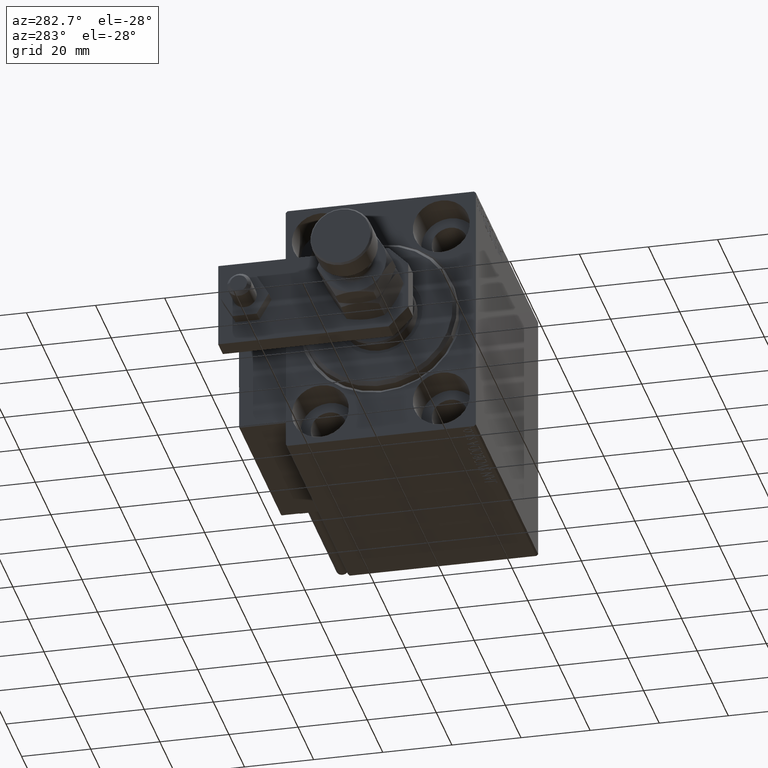
[diagram: clean part render]
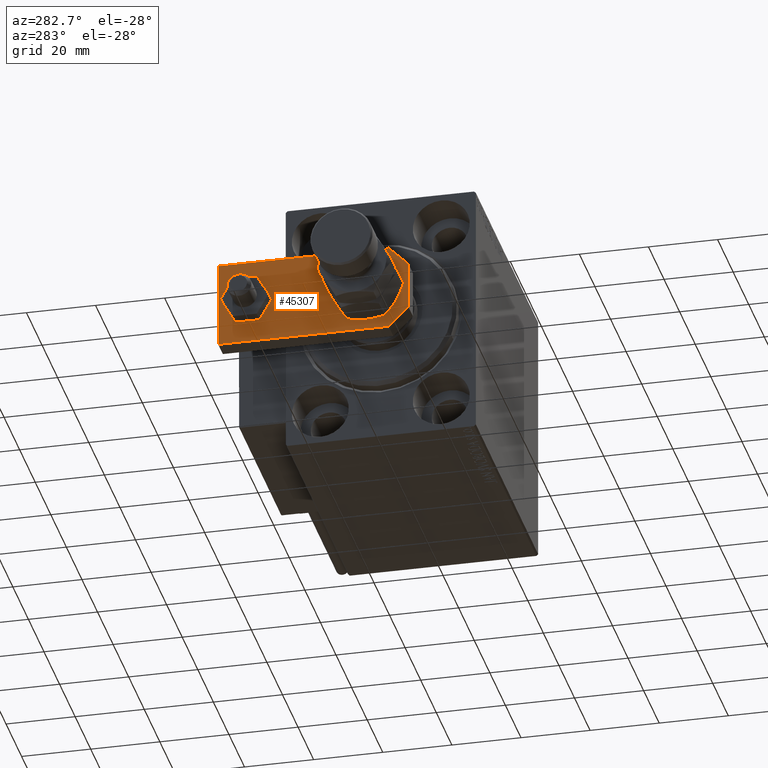
[diagram: same view with one face highlighted and labeled with its STEP entity id]
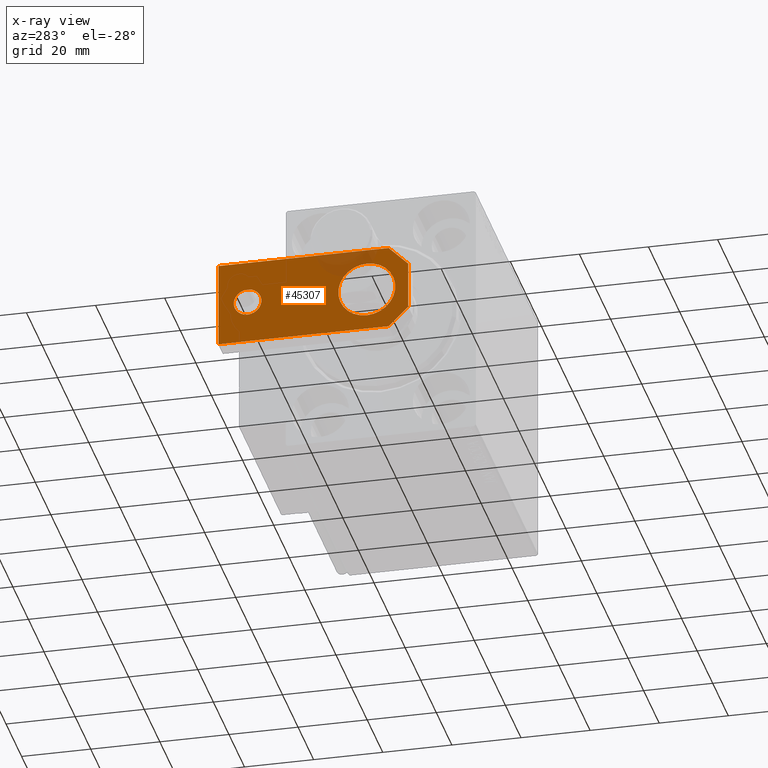
[diagram: x-ray of the same camera — body ghosted, the highlighted face saturated]
A machine part, auxiliary view. The second image highlights one B-rep face of the part: STEP entity #45307.
The next image is the same camera in x-ray: the body ghosted, the highlighted face saturated — about 8% of this face is hidden behind the body in this view.
In plain terms, the highlighted planar face has unit normal (-1, 0, 0).
Its self-contained STEP definition (entity closure, byte-faithful):
#3 = DIRECTION ( 'NONE',  ( -1.000000000000000000, 0.000000000000000000, 0.000000000000000000 ) ) ;
#121 = VERTEX_POINT ( 'NONE', #6047 ) ;
#836 = EDGE_LOOP ( 'NONE', ( #4872, #27222 ) ) ;
#1363 = ORIENTED_EDGE ( 'NONE', *, *, #37862, .T. ) ;
#1496 = VECTOR ( 'NONE', #22887, 1000.000000000000114 ) ;
#2271 = DIRECTION ( 'NONE',  ( 0.000000000000000000, 0.000000000000000000, 1.000000000000000000 ) ) ;
#2377 = EDGE_LOOP ( 'NONE', ( #4133, #8394 ) ) ;
#4133 = ORIENTED_EDGE ( 'NONE', *, *, #8149, .F. ) ;
#4872 = ORIENTED_EDGE ( 'NONE', *, *, #46225, .F. ) ;
#4991 = CARTESIAN_POINT ( 'NONE',  ( -4.000000000000000888, 46.50000000000000000, 6.000000000000000000 ) ) ;
#6047 = CARTESIAN_POINT ( 'NONE',  ( -12.49999999999999822, 55.00000000000000000, 6.000000000000000000 ) ) ;
#6073 = DIRECTION ( 'NONE',  ( 0.000000000000000000, 0.000000000000000000, 1.000000000000000000 ) ) ;
#7269 = CARTESIAN_POINT ( 'NONE',  ( -12.50000000000000355, 5.660000000000005471, 6.000000000000000000 ) ) ;
#8059 = VERTEX_POINT ( 'NONE', #15794 ) ;
#8149 = EDGE_CURVE ( 'NONE', #33242, #15772, #24075, .T. ) ;
#8394 = ORIENTED_EDGE ( 'NONE', *, *, #21030, .F. ) ;
#9320 = CARTESIAN_POINT ( 'NONE',  ( 4.000000000000000888, 46.50000000000000000, 6.000000000000000000 ) ) ;
#9532 = CARTESIAN_POINT ( 'NONE',  ( -6.840000000000012292, 4.814824860968089633E-32, 6.000000000000000000 ) ) ;
#9579 = DIRECTION ( 'NONE',  ( 1.000000000000000000, 0.000000000000000000, 0.000000000000000000 ) ) ;
#10107 = DIRECTION ( 'NONE',  ( 1.000000000000000000, 0.000000000000000000, 0.000000000000000000 ) ) ;
#10923 = VECTOR ( 'NONE', #3, 1000.000000000000000 ) ;
#11231 = CARTESIAN_POINT ( 'NONE',  ( 12.50000000000000000, 55.00000000000000000, 6.000000000000000000 ) ) ;
#12088 = CARTESIAN_POINT ( 'NONE',  ( 0.000000000000000000, 0.000000000000000000, 6.000000000000000000 ) ) ;
#12172 = DIRECTION ( 'NONE',  ( 0.000000000000000000, 0.000000000000000000, 1.000000000000000000 ) ) ;
#12815 = CARTESIAN_POINT ( 'NONE',  ( 12.50000000000000355, 5.659999999999991260, 6.000000000000000000 ) ) ;
#13011 = CARTESIAN_POINT ( 'NONE',  ( 3.419999999999990603, -3.419999999999999485, 6.000000000000000000 ) ) ;
#13262 = VECTOR ( 'NONE', #26551, 1000.000000000000000 ) ;
#13316 = EDGE_LOOP ( 'NONE', ( #1363, #44443, #32623, #28840, #40663, #40634 ) ) ;
#14484 = EDGE_CURVE ( 'NONE', #37244, #121, #15891, .T. ) ;
#15209 = DIRECTION ( 'NONE',  ( -0.000000000000000000, 0.000000000000000000, 1.000000000000000000 ) ) ;
#15772 = VERTEX_POINT ( 'NONE', #9320 ) ;
#15794 = CARTESIAN_POINT ( 'NONE',  ( 6.839999999999998970, 4.814824860968089633E-32, 6.000000000000000000 ) ) ;
#15891 = LINE ( 'NONE', #11231, #10923 ) ;
#16233 = DIRECTION ( 'NONE',  ( 1.000000000000000000, 0.000000000000000000, 0.000000000000000000 ) ) ;
#16441 = CIRCLE ( 'NONE', #42283, 8.250000000000000000 ) ;
#16769 = DIRECTION ( 'NONE',  ( -9.462128050782584375E-17, -1.000000000000000000, 0.000000000000000000 ) ) ;
#17295 = VERTEX_POINT ( 'NONE', #39666 ) ;
#19396 = PLANE ( 'NONE',  #38151 ) ;
#19629 = CARTESIAN_POINT ( 'NONE',  ( 8.250000000000000000, 11.99999999999999822, 6.000000000000000000 ) ) ;
#20898 = EDGE_CURVE ( 'NONE', #41125, #37244, #26259, .T. ) ;
#21030 = EDGE_CURVE ( 'NONE', #15772, #33242, #30239, .T. ) ;
#22210 = DIRECTION ( 'NONE',  ( 1.000000000000000000, 0.000000000000000000, 0.000000000000000000 ) ) ;
#22376 = CARTESIAN_POINT ( 'NONE',  ( -3.420000000000013696, -3.420000000000006146, 6.000000000000000000 ) ) ;
#22641 = LINE ( 'NONE', #22376, #13262 ) ;
#22887 = DIRECTION ( 'NONE',  ( 0.7071067811865483499, 0.7071067811865465735, -0.000000000000000000 ) ) ;
#24075 = CIRCLE ( 'NONE', #29061, 4.000000000000000888 ) ;
#26259 = LINE ( 'NONE', #42437, #41073 ) ;
#26551 = DIRECTION ( 'NONE',  ( 0.7071067811865467956, -0.7071067811865483499, 0.000000000000000000 ) ) ;
#26584 = VECTOR ( 'NONE', #9579, 1000.000000000000000 ) ;
#27222 = ORIENTED_EDGE ( 'NONE', *, *, #32088, .F. ) ;
#27557 = CARTESIAN_POINT ( 'NONE',  ( -1.432611055310774642E-16, 46.50000000000000000, 6.000000000000000000 ) ) ;
#28059 = DIRECTION ( 'NONE',  ( 1.000000000000000000, 0.000000000000000000, 0.000000000000000000 ) ) ;
#28840 = ORIENTED_EDGE ( 'NONE', *, *, #32485, .T. ) ;
#29061 = AXIS2_PLACEMENT_3D ( 'NONE', #31372, #31119, #39205 ) ;
#29374 = LINE ( 'NONE', #45300, #26584 ) ;
#29901 = CARTESIAN_POINT ( 'NONE',  ( -9.629649721936179265E-32, 11.99999999999999645, 6.000000000000000000 ) ) ;
#30239 = CIRCLE ( 'NONE', #49443, 4.000000000000000888 ) ;
#31119 = DIRECTION ( 'NONE',  ( 0.000000000000000000, 0.000000000000000000, 1.000000000000000000 ) ) ;
#31369 = FACE_BOUND ( 'NONE', #2377, .T. ) ;
#31372 = CARTESIAN_POINT ( 'NONE',  ( -1.432611055310774642E-16, 46.50000000000000000, 6.000000000000000000 ) ) ;
#31526 = AXIS2_PLACEMENT_3D ( 'NONE', #29901, #2271, #10107 ) ;
#32088 = EDGE_CURVE ( 'NONE', #34930, #17295, #16441, .T. ) ;
#32485 = EDGE_CURVE ( 'NONE', #8059, #41125, #48747, .T. ) ;
#32623 = ORIENTED_EDGE ( 'NONE', *, *, #47015, .T. ) ;
#33242 = VERTEX_POINT ( 'NONE', #4991 ) ;
#34930 = VERTEX_POINT ( 'NONE', #19629 ) ;
#37244 = VERTEX_POINT ( 'NONE', #37493 ) ;
#37493 = CARTESIAN_POINT ( 'NONE',  ( 12.50000000000000000, 55.00000000000000000, 6.000000000000000000 ) ) ;
#37862 = EDGE_CURVE ( 'NONE', #121, #43138, #44937, .T. ) ;
#38151 = AXIS2_PLACEMENT_3D ( 'NONE', #12088, #15209, #16233 ) ;
#38244 = FACE_OUTER_BOUND ( 'NONE', #13316, .T. ) ;
#38517 = DIRECTION ( 'NONE',  ( -6.308085367188389994E-17, 1.000000000000000000, 0.000000000000000000 ) ) ;
#39205 = DIRECTION ( 'NONE',  ( 1.000000000000000000, 0.000000000000000000, 0.000000000000000000 ) ) ;
#39666 = CARTESIAN_POINT ( 'NONE',  ( -8.250000000000000000, 11.99999999999999645, 6.000000000000000000 ) ) ;
#39866 = CIRCLE ( 'NONE', #31526, 8.250000000000000000 ) ;
#40634 = ORIENTED_EDGE ( 'NONE', *, *, #14484, .T. ) ;
#40663 = ORIENTED_EDGE ( 'NONE', *, *, #20898, .T. ) ;
#41073 = VECTOR ( 'NONE', #38517, 1000.000000000000000 ) ;
#41125 = VERTEX_POINT ( 'NONE', #12815 ) ;
#41265 = CARTESIAN_POINT ( 'NONE',  ( -12.49999999999999822, 55.00000000000000000, 6.000000000000000000 ) ) ;
#42160 = FACE_BOUND ( 'NONE', #836, .T. ) ;
#42283 = AXIS2_PLACEMENT_3D ( 'NONE', #42568, #6073, #22210 ) ;
#42437 = CARTESIAN_POINT ( 'NONE',  ( 12.50000000000000355, 4.814824860968089633E-32, 6.000000000000000000 ) ) ;
#42568 = CARTESIAN_POINT ( 'NONE',  ( -9.629649721936179265E-32, 11.99999999999999645, 6.000000000000000000 ) ) ;
#43138 = VERTEX_POINT ( 'NONE', #7269 ) ;
#44443 = ORIENTED_EDGE ( 'NONE', *, *, #50437, .T. ) ;
#44937 = LINE ( 'NONE', #41265, #47079 ) ;
#45300 = CARTESIAN_POINT ( 'NONE',  ( -12.50000000000000355, 4.814824860968089633E-32, 6.000000000000000000 ) ) ;
#45307 = ADVANCED_FACE ( 'NONE', ( #31369, #38244, #42160 ), #19396, .T. ) ;
#46225 = EDGE_CURVE ( 'NONE', #17295, #34930, #39866, .T. ) ;
#46508 = VERTEX_POINT ( 'NONE', #9532 ) ;
#47015 = EDGE_CURVE ( 'NONE', #46508, #8059, #29374, .T. ) ;
#47079 = VECTOR ( 'NONE', #16769, 1000.000000000000000 ) ;
#48747 = LINE ( 'NONE', #13011, #1496 ) ;
#49443 = AXIS2_PLACEMENT_3D ( 'NONE', #27557, #12172, #28059 ) ;
#50437 = EDGE_CURVE ( 'NONE', #43138, #46508, #22641, .T. ) ;